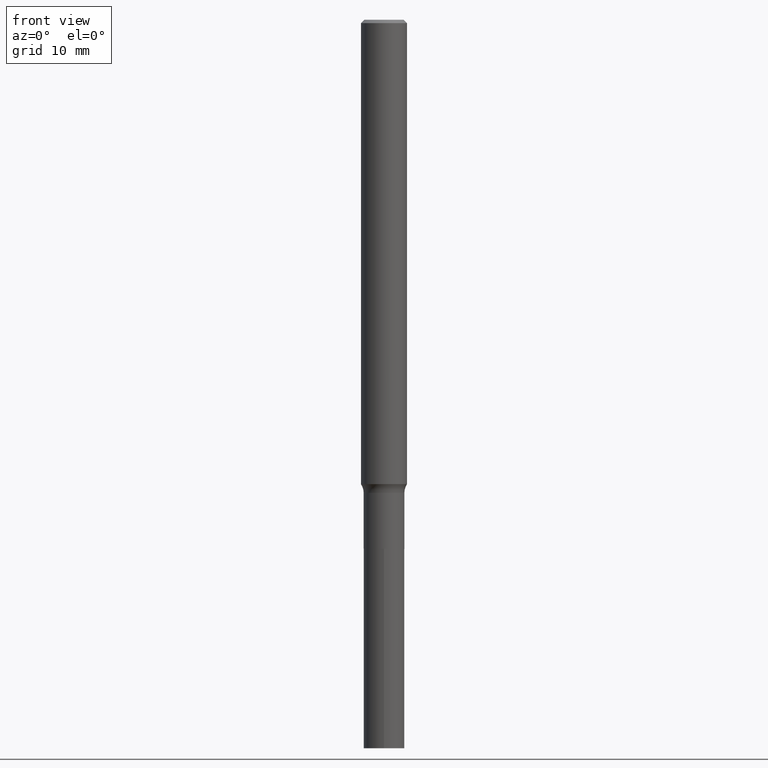
[diagram: clean part render]
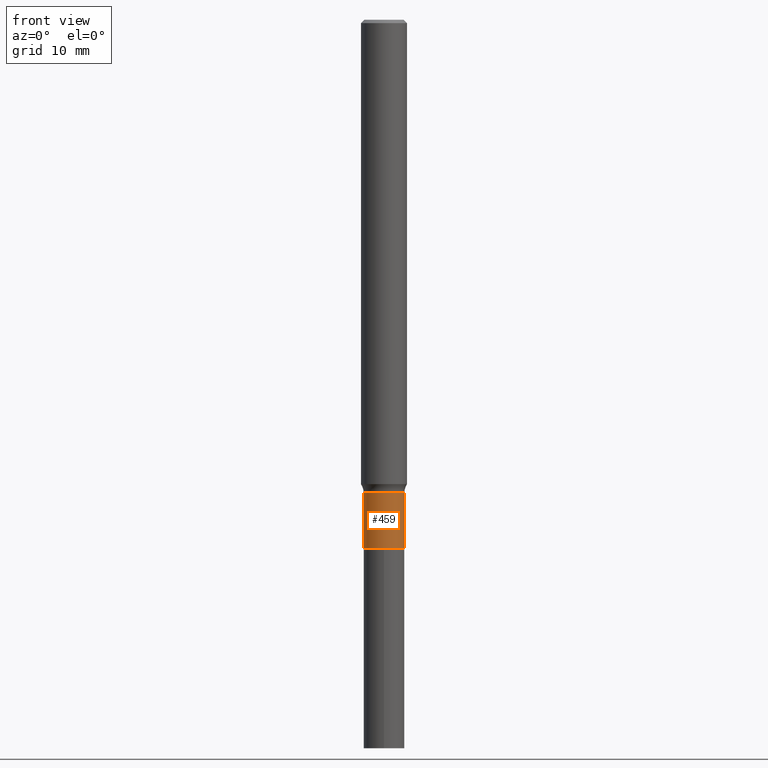
[diagram: same view with one face highlighted and labeled with its STEP entity id]
A machine part, front view. The second image highlights one B-rep face of the part: STEP entity #459.
In plain terms, the highlighted cylindrical surface (edge-blend (fillet) strip) has radius 2.6543 mm, axis along (-0, 0, 1).
Its self-contained STEP definition (entity closure, byte-faithful):
#20 = CARTESIAN_POINT ( 'NONE',  ( 0.1044999999999999818, -1.021153547171454451E-14, -2.715699999999999559 ) ) ;
#29 = DIRECTION ( 'NONE',  ( 1.000000000000000000, -6.982962677686273810E-15, 0.000000000000000000 ) ) ;
#42 = LINE ( 'NONE', #372, #373 ) ;
#45 = VERTEX_POINT ( 'NONE', #324 ) ;
#55 = AXIS2_PLACEMENT_3D ( 'NONE', #122, #333, #368 ) ;
#59 = LINE ( 'NONE', #314, #379 ) ;
#66 = DIRECTION ( 'NONE',  ( -2.445468806185136597E-29, 3.491481338843145583E-15, 1.000000000000000000 ) ) ;
#107 = DIRECTION ( 'NONE',  ( 1.000000000000000000, -6.982962677686266711E-15, 4.876176775795936353E-29 ) ) ;
#115 = AXIS2_PLACEMENT_3D ( 'NONE', #216, #66, #107 ) ;
#122 = CARTESIAN_POINT ( 'NONE',  ( 5.939554636462459745E-29, -8.480109875782233368E-15, -2.428800000000000292 ) ) ;
#142 = EDGE_CURVE ( 'NONE', #45, #278, #356, .T. ) ;
#163 = EDGE_CURVE ( 'NONE', #364, #278, #42, .T. ) ;
#181 = CARTESIAN_POINT ( 'NONE',  ( 6.641159636956974482E-29, -9.481815871896329192E-15, -2.715699999999999559 ) ) ;
#192 = DIRECTION ( 'NONE',  ( -2.445468806185136877E-29, 3.491481338843145188E-15, 1.000000000000000000 ) ) ;
#195 = CARTESIAN_POINT ( 'NONE',  ( -0.1044999999999999818, -8.238445714969977110E-15, -2.715699999999999559 ) ) ;
#199 = EDGE_LOOP ( 'NONE', ( #380, #466, #238, #253 ) ) ;
#201 = VERTEX_POINT ( 'NONE', #195 ) ;
#216 = CARTESIAN_POINT ( 'NONE',  ( 0.000000000000000000, 0.000000000000000000, 0.000000000000000000 ) ) ;
#238 = ORIENTED_EDGE ( 'NONE', *, *, #163, .T. ) ;
#247 = DIRECTION ( 'NONE',  ( -2.445468806185136597E-29, 3.491481338843145583E-15, 1.000000000000000000 ) ) ;
#253 = ORIENTED_EDGE ( 'NONE', *, *, #142, .F. ) ;
#268 = AXIS2_PLACEMENT_3D ( 'NONE', #181, #247, #29 ) ;
#278 = VERTEX_POINT ( 'NONE', #346 ) ;
#314 = CARTESIAN_POINT ( 'NONE',  ( -0.1044999999999999679, 7.425171588693044663E-16, -5.140287169316375031E-30 ) ) ;
#318 = CIRCLE ( 'NONE', #268, 0.1044999999999999818 ) ;
#320 = CYLINDRICAL_SURFACE ( 'NONE', #115, 0.1044999999999999679 ) ;
#324 = CARTESIAN_POINT ( 'NONE',  ( -0.1044999999999999540, -8.238445714969977110E-15, -2.428800000000000292 ) ) ;
#333 = DIRECTION ( 'NONE',  ( -2.445468806185136597E-29, 3.491481338843145583E-15, 1.000000000000000000 ) ) ;
#343 = EDGE_CURVE ( 'NONE', #201, #45, #59, .T. ) ;
#346 = CARTESIAN_POINT ( 'NONE',  ( 0.1044999999999999540, -9.209829475600448681E-15, -2.428800000000000292 ) ) ;
#352 = FACE_OUTER_BOUND ( 'NONE', #199, .T. ) ;
#356 = CIRCLE ( 'NONE', #55, 0.1044999999999999540 ) ;
#364 = VERTEX_POINT ( 'NONE', #20 ) ;
#368 = DIRECTION ( 'NONE',  ( 1.000000000000000000, -6.982962677686276177E-15, 0.000000000000000000 ) ) ;
#372 = CARTESIAN_POINT ( 'NONE',  ( 0.1044999999999999679, -7.297195998182146228E-16, 5.095604730706752119E-30 ) ) ;
#373 = VECTOR ( 'NONE', #192, 39.37007874015748143 ) ;
#379 = VECTOR ( 'NONE', #386, 39.37007874015748143 ) ;
#380 = ORIENTED_EDGE ( 'NONE', *, *, #343, .F. ) ;
#386 = DIRECTION ( 'NONE',  ( -2.445468806185136877E-29, 3.491481338843145188E-15, 1.000000000000000000 ) ) ;
#442 = EDGE_CURVE ( 'NONE', #201, #364, #318, .T. ) ;
#459 = ADVANCED_FACE ( 'NONE', ( #352 ), #320, .T. ) ;
#466 = ORIENTED_EDGE ( 'NONE', *, *, #442, .T. ) ;